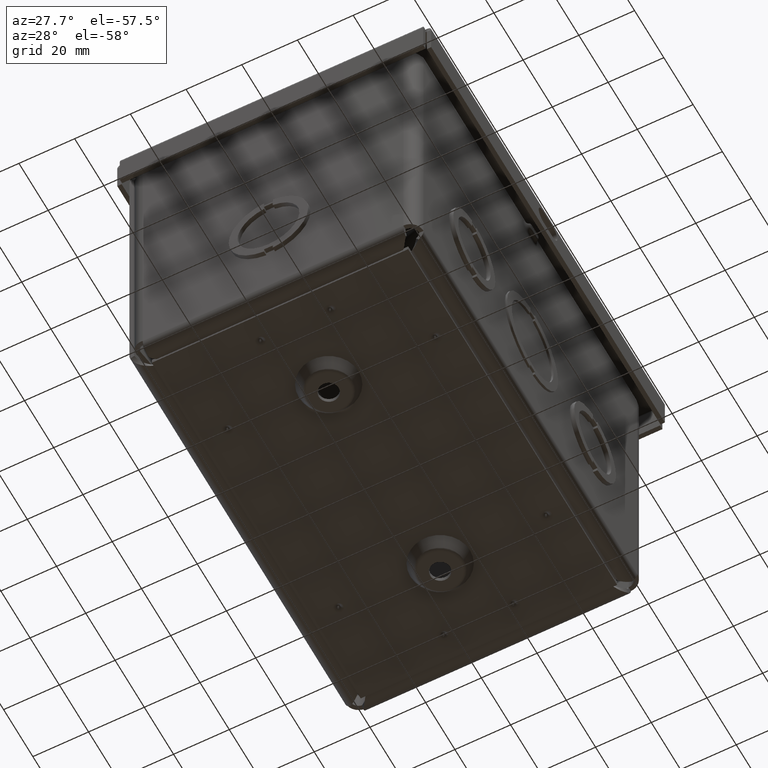
[diagram: clean part render]
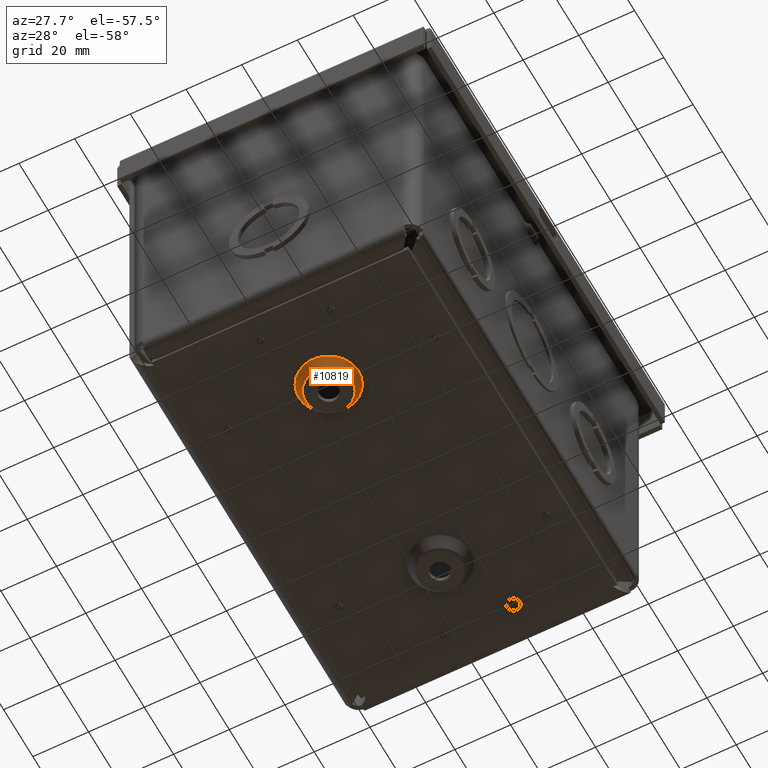
[diagram: same view with one face highlighted and labeled with its STEP entity id]
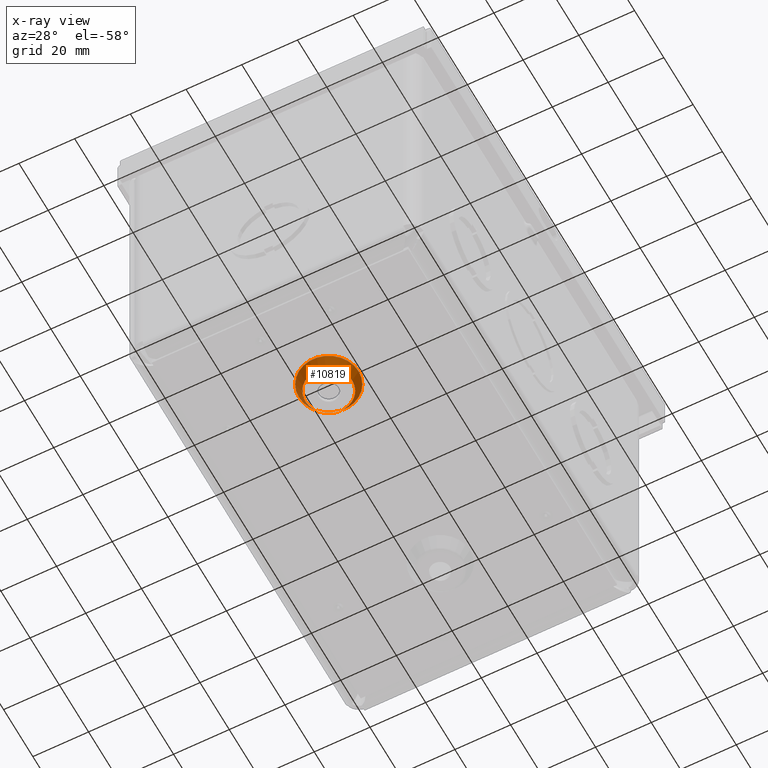
[diagram: x-ray of the same camera — body ghosted, the highlighted face saturated]
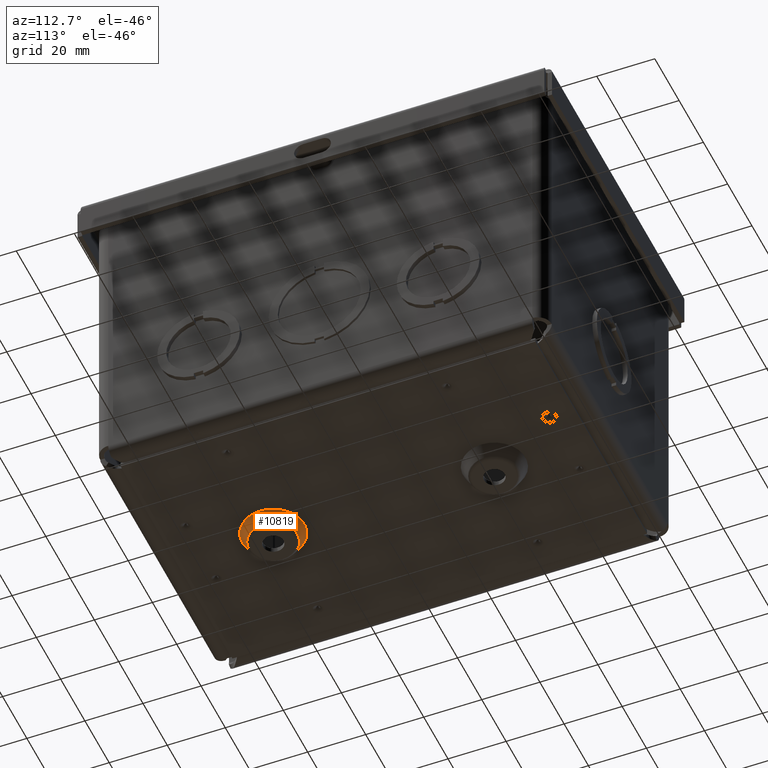
[diagram: same view with one face highlighted and labeled with its STEP entity id]
A machine part, auxiliary view. The second image highlights one B-rep face of the part: STEP entity #10819.
The next image is the same camera in x-ray: the body ghosted, the highlighted face saturated — about 0% of this face is hidden behind the body in this view.
A second angle (auxiliary view) of the same face is appended — the face is thin or edge-on in the first view.
In plain terms, the highlighted conical surface has half-angle 30 deg.
Its self-contained STEP definition (entity closure, byte-faithful):
#442=CONICAL_SURFACE($,#11510,0.376192159950371,30.);
#2927=FACE_BOUND($,#3701,.T.);
#3057=FACE_OUTER_BOUND($,#3700,.T.);
#3700=EDGE_LOOP($,(#7151));
#3701=EDGE_LOOP($,(#7152));
#4441=CIRCLE($,#11509,0.421008974596216);
#4442=CIRCLE($,#11511,0.331375345304526);
#4728=VERTEX_POINT($,#15240);
#4729=VERTEX_POINT($,#15243);
#5659=EDGE_CURVE($,#4728,#4728,#4441,.T.);
#5660=EDGE_CURVE($,#4729,#4729,#4442,.T.);
#7151=ORIENTED_EDGE($,*,*,#5659,.T.);
#7152=ORIENTED_EDGE($,*,*,#5660,.F.);
#10819=ADVANCED_FACE($,(#3057,#2927),#442,.T.);
#11509=AXIS2_PLACEMENT_3D($,#15241,#12452,#12453);
#11510=AXIS2_PLACEMENT_3D($,#15242,#12454,#12455);
#11511=AXIS2_PLACEMENT_3D($,#15244,#12456,#12457);
#12452=DIRECTION('center_axis',(0.,6.12323399573677E-017,1.));
#12453=DIRECTION('ref_axis',(1.,0.,0.));
#12454=DIRECTION('center_axis',(0.,-6.12323399573677E-017,-1.));
#12455=DIRECTION('ref_axis',(-1.,-5.75231201174914E-017,0.));
#12456=DIRECTION('center_axis',(0.,6.12323399573677E-017,1.));
#12457=DIRECTION('ref_axis',(1.,0.,0.));
#15240=CARTESIAN_POINT('',(1.39149102540378,4.3125,0.063));
#15241=CARTESIAN_POINT('Origin',(1.8125,4.3125,0.063));
#15242=CARTESIAN_POINT('Origin',(1.8125,4.3125,0.140625));
#15243=CARTESIAN_POINT('',(1.48112465469547,4.3125,0.21825));
#15244=CARTESIAN_POINT('Origin',(1.8125,4.3125,0.21825));